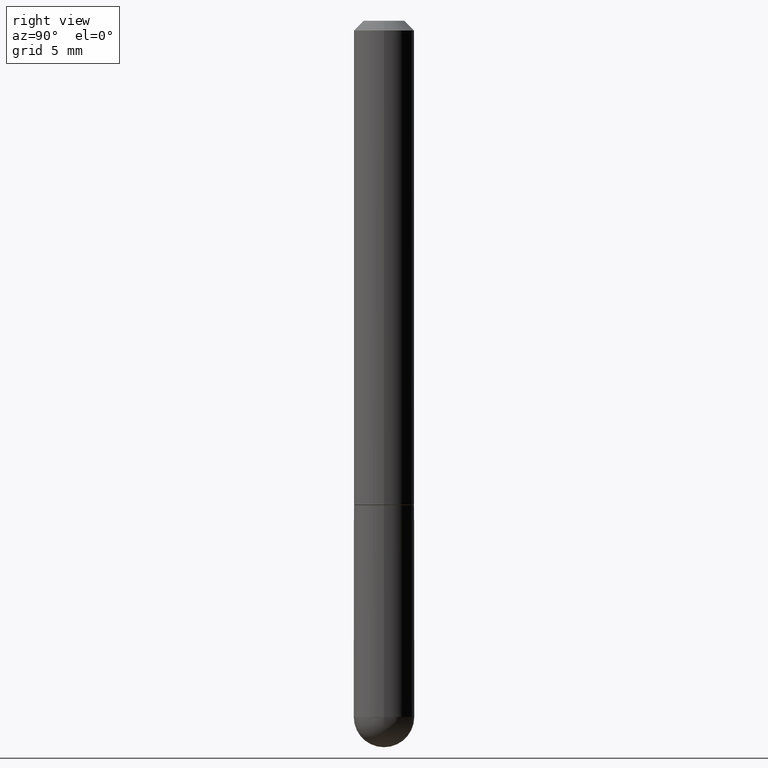
[diagram: clean part render]
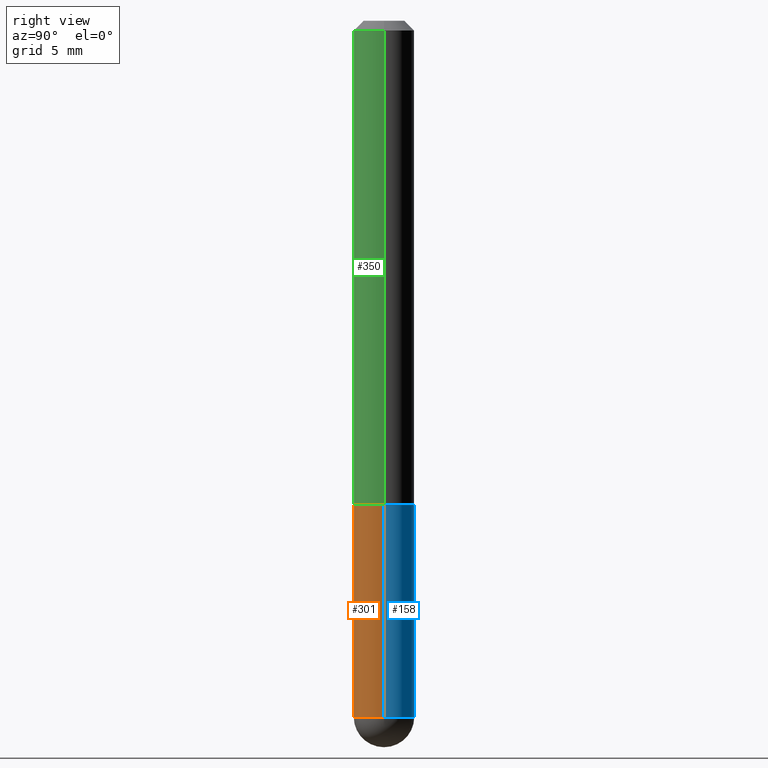
[diagram: same view with three faces highlighted in distinct colors, each labeled with its STEP entity id]
A machine part, right view with three faces highlighted in distinct colors.
Their STEP definitions:

[orange] entity #301 — the highlighted cylindrical surface (edge-blend (fillet) strip) has radius 1.5875 mm, axis along (-0, 0, 1).
#21 = EDGE_CURVE ( 'NONE', #359, #357, #263, .T. ) ;
#34 = EDGE_CURVE ( 'NONE', #398, #359, #121, .T. ) ;
#72 = DIRECTION ( 'NONE',  ( -2.445468806185136597E-29, 3.491481338843145583E-15, 1.000000000000000000 ) ) ;
#74 = EDGE_CURVE ( 'NONE', #173, #388, #345, .T. ) ;
#75 = CARTESIAN_POINT ( 'NONE',  ( 2.445468806185136877E-29, -3.491481338843145977E-15, -1.000000000000000222 ) ) ;
#78 = CIRCLE ( 'NONE', #170, 0.06249999999999995143 ) ;
#93 = DIRECTION ( 'NONE',  ( 1.000000000000000000, -6.982962677686268288E-15, 0.000000000000000000 ) ) ;
#96 = EDGE_CURVE ( 'NONE', #398, #173, #78, .T. ) ;
#100 = CARTESIAN_POINT ( 'NONE',  ( -0.06249999999999995143, -3.811153671865022332E-15, -1.437500000000000222 ) ) ;
#111 = EDGE_CURVE ( 'NONE', #388, #357, #255, .T. ) ;
#121 = LINE ( 'NONE', #332, #182 ) ;
#131 = CYLINDRICAL_SURFACE ( 'NONE', #135, 0.06249999999999997224 ) ;
#135 = AXIS2_PLACEMENT_3D ( 'NONE', #174, #164, #380 ) ;
#137 = VECTOR ( 'NONE', #254, 39.37007874015748143 ) ;
#139 = EDGE_LOOP ( 'NONE', ( #270, #232, #239, #293, #371 ) ) ;
#161 = CARTESIAN_POINT ( 'NONE',  ( 0.06250000000000000000, -3.927916506198537646E-15, -1.000000000000000222 ) ) ;
#164 = DIRECTION ( 'NONE',  ( -2.445468806185136597E-29, 3.491481338843145583E-15, 1.000000000000000000 ) ) ;
#170 = AXIS2_PLACEMENT_3D ( 'NONE', #315, #372, #216 ) ;
#173 = VERTEX_POINT ( 'NONE', #225 ) ;
#174 = CARTESIAN_POINT ( 'NONE',  ( 0.000000000000000000, 0.000000000000000000, 0.000000000000000000 ) ) ;
#178 = CARTESIAN_POINT ( 'NONE',  ( 3.515361408891134418E-29, -5.019004424587023131E-15, -1.437500000000000222 ) ) ;
#182 = VECTOR ( 'NONE', #362, 39.37007874015748143 ) ;
#201 = CARTESIAN_POINT ( 'NONE',  ( 0.06249999999999995143, -4.691678049070475040E-15, -1.437500000000000222 ) ) ;
#208 = DIRECTION ( 'NONE',  ( 1.000000000000000000, -6.982962677686262766E-15, 0.000000000000000000 ) ) ;
#216 = DIRECTION ( 'NONE',  ( 1.000000000000000000, -6.982962677686268288E-15, 0.000000000000000000 ) ) ;
#225 = CARTESIAN_POINT ( 'NONE',  ( -4.440892098500294840E-16, -0.06250000000000532907, -1.437500000000000000 ) ) ;
#231 = CARTESIAN_POINT ( 'NONE',  ( -0.06250000000000000000, -3.811153671865022332E-15, -1.000000000000000222 ) ) ;
#232 = ORIENTED_EDGE ( 'NONE', *, *, #96, .T. ) ;
#235 = FACE_OUTER_BOUND ( 'NONE', #139, .T. ) ;
#239 = ORIENTED_EDGE ( 'NONE', *, *, #74, .T. ) ;
#245 = AXIS2_PLACEMENT_3D ( 'NONE', #75, #72, #208 ) ;
#254 = DIRECTION ( 'NONE',  ( -2.445468806185136877E-29, 3.491481338843145188E-15, 1.000000000000000000 ) ) ;
#255 = LINE ( 'NONE', #377, #137 ) ;
#263 = CIRCLE ( 'NONE', #245, 0.06250000000000000000 ) ;
#270 = ORIENTED_EDGE ( 'NONE', *, *, #34, .F. ) ;
#293 = ORIENTED_EDGE ( 'NONE', *, *, #111, .T. ) ;
#297 = DIRECTION ( 'NONE',  ( -2.445468806185136597E-29, 3.491481338843145583E-15, 1.000000000000000000 ) ) ;
#301 = ADVANCED_FACE ( 'NONE', ( #235 ), #131, .T. ) ;
#315 = CARTESIAN_POINT ( 'NONE',  ( 3.515361408891134418E-29, -5.019004424587023131E-15, -1.437500000000000222 ) ) ;
#332 = CARTESIAN_POINT ( 'NONE',  ( -0.06249999999999997224, 4.440892098500624190E-16, -3.074334431409315063E-30 ) ) ;
#345 = CIRCLE ( 'NONE', #397, 0.06249999999999995143 ) ;
#357 = VERTEX_POINT ( 'NONE', #161 ) ;
#359 = VERTEX_POINT ( 'NONE', #231 ) ;
#362 = DIRECTION ( 'NONE',  ( -2.445468806185136877E-29, 3.491481338843145188E-15, 1.000000000000000000 ) ) ;
#371 = ORIENTED_EDGE ( 'NONE', *, *, #21, .F. ) ;
#372 = DIRECTION ( 'NONE',  ( -2.445468806185136597E-29, 3.491481338843145583E-15, 1.000000000000000000 ) ) ;
#377 = CARTESIAN_POINT ( 'NONE',  ( 0.06249999999999997224, -4.364351673553914722E-16, 3.047610484872458469E-30 ) ) ;
#380 = DIRECTION ( 'NONE',  ( 1.000000000000000000, -6.982962677686266711E-15, 4.876176775795935793E-29 ) ) ;
#388 = VERTEX_POINT ( 'NONE', #201 ) ;
#397 = AXIS2_PLACEMENT_3D ( 'NONE', #178, #297, #93 ) ;
#398 = VERTEX_POINT ( 'NONE', #100 ) ;

[blue] entity #158 — the highlighted cylindrical surface (edge-blend (fillet) strip) has radius 1.5875 mm, axis along (-0, 0, 1).
#4 = EDGE_CURVE ( 'NONE', #388, #5, #366, .T. ) ;
#5 = VERTEX_POINT ( 'NONE', #336 ) ;
#25 = CYLINDRICAL_SURFACE ( 'NONE', #347, 0.06249999999999997224 ) ;
#34 = EDGE_CURVE ( 'NONE', #398, #359, #121, .T. ) ;
#87 = AXIS2_PLACEMENT_3D ( 'NONE', #143, #146, #249 ) ;
#95 = DIRECTION ( 'NONE',  ( -2.445468806185136597E-29, 3.491481338843145583E-15, 1.000000000000000000 ) ) ;
#100 = CARTESIAN_POINT ( 'NONE',  ( -0.06249999999999995143, -3.811153671865022332E-15, -1.437500000000000222 ) ) ;
#101 = ORIENTED_EDGE ( 'NONE', *, *, #111, .F. ) ;
#111 = EDGE_CURVE ( 'NONE', #388, #357, #255, .T. ) ;
#121 = LINE ( 'NONE', #332, #182 ) ;
#137 = VECTOR ( 'NONE', #254, 39.37007874015748143 ) ;
#143 = CARTESIAN_POINT ( 'NONE',  ( 3.515361408891134418E-29, -5.019004424587023131E-15, -1.437500000000000222 ) ) ;
#146 = DIRECTION ( 'NONE',  ( -2.445468806185136597E-29, 3.491481338843145583E-15, 1.000000000000000000 ) ) ;
#157 = DIRECTION ( 'NONE',  ( -2.445468806185136597E-29, 3.491481338843145583E-15, 1.000000000000000000 ) ) ;
#158 = ADVANCED_FACE ( 'NONE', ( #341 ), #25, .T. ) ;
#161 = CARTESIAN_POINT ( 'NONE',  ( 0.06250000000000000000, -3.927916506198537646E-15, -1.000000000000000222 ) ) ;
#165 = DIRECTION ( 'NONE',  ( 1.000000000000000000, -6.982962677686262766E-15, 0.000000000000000000 ) ) ;
#182 = VECTOR ( 'NONE', #362, 39.37007874015748143 ) ;
#192 = DIRECTION ( 'NONE',  ( 1.000000000000000000, -6.982962677686266711E-15, 4.876176775795935793E-29 ) ) ;
#201 = CARTESIAN_POINT ( 'NONE',  ( 0.06249999999999995143, -4.691678049070475040E-15, -1.437500000000000222 ) ) ;
#203 = AXIS2_PLACEMENT_3D ( 'NONE', #412, #356, #165 ) ;
#226 = DIRECTION ( 'NONE',  ( 1.000000000000000000, -6.982962677686268288E-15, 0.000000000000000000 ) ) ;
#231 = CARTESIAN_POINT ( 'NONE',  ( -0.06250000000000000000, -3.811153671865022332E-15, -1.000000000000000222 ) ) ;
#249 = DIRECTION ( 'NONE',  ( 1.000000000000000000, -6.982962677686268288E-15, 0.000000000000000000 ) ) ;
#254 = DIRECTION ( 'NONE',  ( -2.445468806185136877E-29, 3.491481338843145188E-15, 1.000000000000000000 ) ) ;
#255 = LINE ( 'NONE', #377, #137 ) ;
#262 = CIRCLE ( 'NONE', #203, 0.06250000000000000000 ) ;
#274 = ORIENTED_EDGE ( 'NONE', *, *, #343, .T. ) ;
#295 = CARTESIAN_POINT ( 'NONE',  ( 3.515361408891134418E-29, -5.019004424587023131E-15, -1.437500000000000222 ) ) ;
#311 = CIRCLE ( 'NONE', #395, 0.06249999999999995143 ) ;
#327 = ORIENTED_EDGE ( 'NONE', *, *, #378, .F. ) ;
#332 = CARTESIAN_POINT ( 'NONE',  ( -0.06249999999999997224, 4.440892098500624190E-16, -3.074334431409315063E-30 ) ) ;
#336 = CARTESIAN_POINT ( 'NONE',  ( 4.364351673554256397E-16, 0.06249999999999480971, -1.437500000000000444 ) ) ;
#341 = FACE_OUTER_BOUND ( 'NONE', #411, .T. ) ;
#343 = EDGE_CURVE ( 'NONE', #5, #398, #311, .T. ) ;
#347 = AXIS2_PLACEMENT_3D ( 'NONE', #404, #157, #192 ) ;
#356 = DIRECTION ( 'NONE',  ( -2.445468806185136597E-29, 3.491481338843145583E-15, 1.000000000000000000 ) ) ;
#357 = VERTEX_POINT ( 'NONE', #161 ) ;
#359 = VERTEX_POINT ( 'NONE', #231 ) ;
#362 = DIRECTION ( 'NONE',  ( -2.445468806185136877E-29, 3.491481338843145188E-15, 1.000000000000000000 ) ) ;
#366 = CIRCLE ( 'NONE', #87, 0.06249999999999995143 ) ;
#377 = CARTESIAN_POINT ( 'NONE',  ( 0.06249999999999997224, -4.364351673553914722E-16, 3.047610484872458469E-30 ) ) ;
#378 = EDGE_CURVE ( 'NONE', #357, #359, #262, .T. ) ;
#383 = ORIENTED_EDGE ( 'NONE', *, *, #4, .T. ) ;
#386 = ORIENTED_EDGE ( 'NONE', *, *, #34, .T. ) ;
#388 = VERTEX_POINT ( 'NONE', #201 ) ;
#395 = AXIS2_PLACEMENT_3D ( 'NONE', #295, #95, #226 ) ;
#398 = VERTEX_POINT ( 'NONE', #100 ) ;
#404 = CARTESIAN_POINT ( 'NONE',  ( 0.000000000000000000, 0.000000000000000000, 0.000000000000000000 ) ) ;
#411 = EDGE_LOOP ( 'NONE', ( #274, #386, #327, #101, #383 ) ) ;
#412 = CARTESIAN_POINT ( 'NONE',  ( 2.445468806185136877E-29, -3.491481338843145977E-15, -1.000000000000000222 ) ) ;

[green] entity #350 — the highlighted cylindrical surface (edge-blend (fillet) strip) has radius 1.5875 mm, axis along (-0, 0, 1).
#19 = CARTESIAN_POINT ( 'NONE',  ( -0.06249999999999995143, 3.666055405785281740E-16, -0.02000000000000006981 ) ) ;
#27 = FACE_OUTER_BOUND ( 'NONE', #370, .T. ) ;
#50 = ORIENTED_EDGE ( 'NONE', *, *, #247, .T. ) ;
#55 = EDGE_CURVE ( 'NONE', #354, #107, #306, .T. ) ;
#80 = CARTESIAN_POINT ( 'NONE',  ( -0.06250000000000004163, 4.440892098500629120E-16, -3.074334431409318216E-30 ) ) ;
#88 = CARTESIAN_POINT ( 'NONE',  ( 0.06249999999999995143, -4.986107516375835278E-16, -0.02000000000000006981 ) ) ;
#103 = DIRECTION ( 'NONE',  ( -2.445468806185136597E-29, 3.491481338843145583E-15, 1.000000000000000000 ) ) ;
#104 = VERTEX_POINT ( 'NONE', #88 ) ;
#107 = VERTEX_POINT ( 'NONE', #19 ) ;
#110 = DIRECTION ( 'NONE',  ( -2.445468806185136877E-29, 3.491481338843145188E-15, 1.000000000000000000 ) ) ;
#124 = CIRCLE ( 'NONE', #353, 0.06249999999999995143 ) ;
#141 = VERTEX_POINT ( 'NONE', #191 ) ;
#144 = EDGE_CURVE ( 'NONE', #141, #104, #156, .T. ) ;
#156 = LINE ( 'NONE', #400, #172 ) ;
#171 = CIRCLE ( 'NONE', #367, 0.06250000000000013878 ) ;
#172 = VECTOR ( 'NONE', #256, 39.37007874015748143 ) ;
#191 = CARTESIAN_POINT ( 'NONE',  ( 0.06250000000000013878, -3.924425024859695428E-15, -0.9990000000000002212 ) ) ;
#205 = ORIENTED_EDGE ( 'NONE', *, *, #144, .T. ) ;
#209 = AXIS2_PLACEMENT_3D ( 'NONE', #289, #103, #355 ) ;
#215 = ORIENTED_EDGE ( 'NONE', *, *, #55, .F. ) ;
#247 = EDGE_CURVE ( 'NONE', #354, #141, #171, .T. ) ;
#256 = DIRECTION ( 'NONE',  ( -2.445468806185136877E-29, 3.491481338843145188E-15, 1.000000000000000000 ) ) ;
#259 = DIRECTION ( 'NONE',  ( -2.445468806185136597E-29, 3.491481338843145583E-15, 1.000000000000000000 ) ) ;
#261 = CYLINDRICAL_SURFACE ( 'NONE', #209, 0.06250000000000004163 ) ;
#287 = DIRECTION ( 'NONE',  ( -2.445468806185136597E-29, 3.491481338843145583E-15, 1.000000000000000000 ) ) ;
#288 = CARTESIAN_POINT ( 'NONE',  ( -0.06250000000000013878, -1.334820532290516771E-15, -0.9990000000000002212 ) ) ;
#289 = CARTESIAN_POINT ( 'NONE',  ( 0.000000000000000000, 0.000000000000000000, 0.000000000000000000 ) ) ;
#291 = VECTOR ( 'NONE', #110, 39.37007874015748143 ) ;
#306 = LINE ( 'NONE', #80, #291 ) ;
#309 = CARTESIAN_POINT ( 'NONE',  ( 2.443023337378951835E-29, -3.487989857504302970E-15, -0.9990000000000002212 ) ) ;
#321 = ORIENTED_EDGE ( 'NONE', *, *, #363, .F. ) ;
#322 = CARTESIAN_POINT ( 'NONE',  ( 4.890937612370289799E-31, -6.982962677686315028E-17, -0.02000000000000006981 ) ) ;
#344 = DIRECTION ( 'NONE',  ( 1.000000000000000000, -6.982962677686270655E-15, 0.000000000000000000 ) ) ;
#350 = ADVANCED_FACE ( 'NONE', ( #27 ), #261, .T. ) ;
#353 = AXIS2_PLACEMENT_3D ( 'NONE', #322, #287, #381 ) ;
#354 = VERTEX_POINT ( 'NONE', #288 ) ;
#355 = DIRECTION ( 'NONE',  ( 1.000000000000000000, -6.982962677686266711E-15, 4.876176775795935793E-29 ) ) ;
#363 = EDGE_CURVE ( 'NONE', #107, #104, #124, .T. ) ;
#367 = AXIS2_PLACEMENT_3D ( 'NONE', #309, #259, #344 ) ;
#370 = EDGE_LOOP ( 'NONE', ( #215, #50, #205, #321 ) ) ;
#381 = DIRECTION ( 'NONE',  ( 1.000000000000000000, -6.982962677686266711E-15, 0.000000000000000000 ) ) ;
#400 = CARTESIAN_POINT ( 'NONE',  ( 0.06250000000000004163, -4.364351673553919652E-16, 3.047610484872461972E-30 ) ) ;